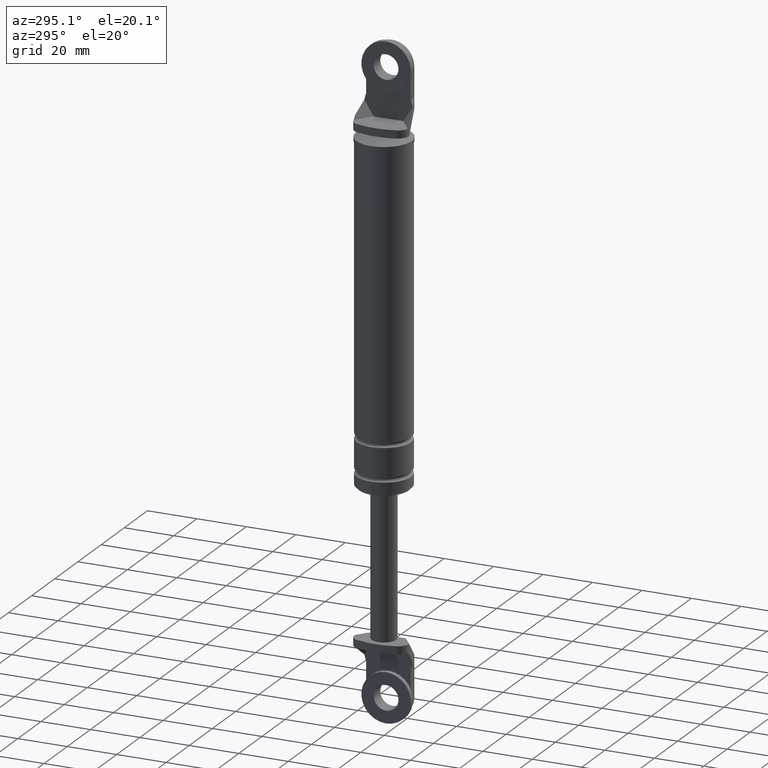
[diagram: clean part render]
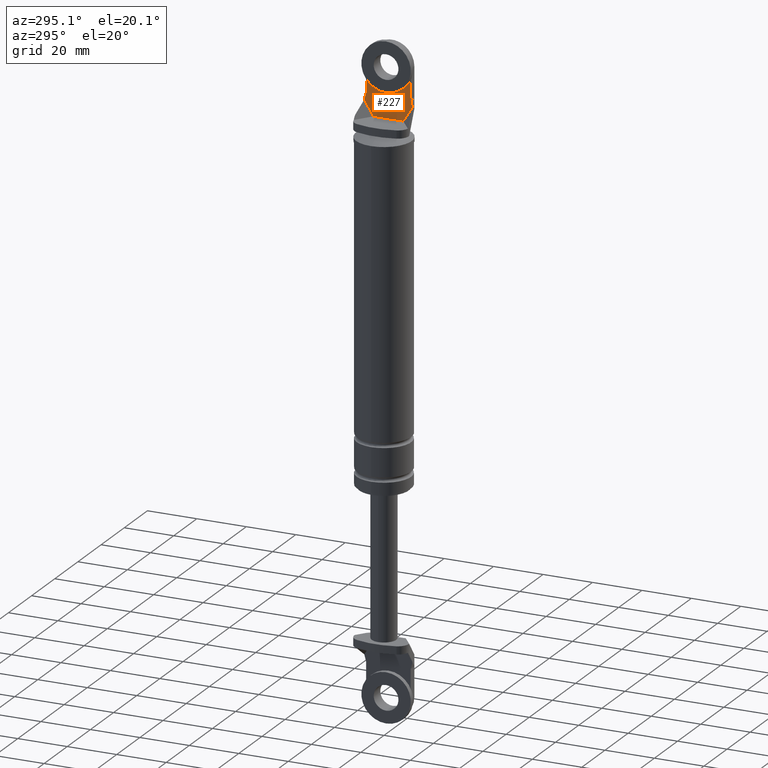
[diagram: same view with one face highlighted and labeled with its STEP entity id]
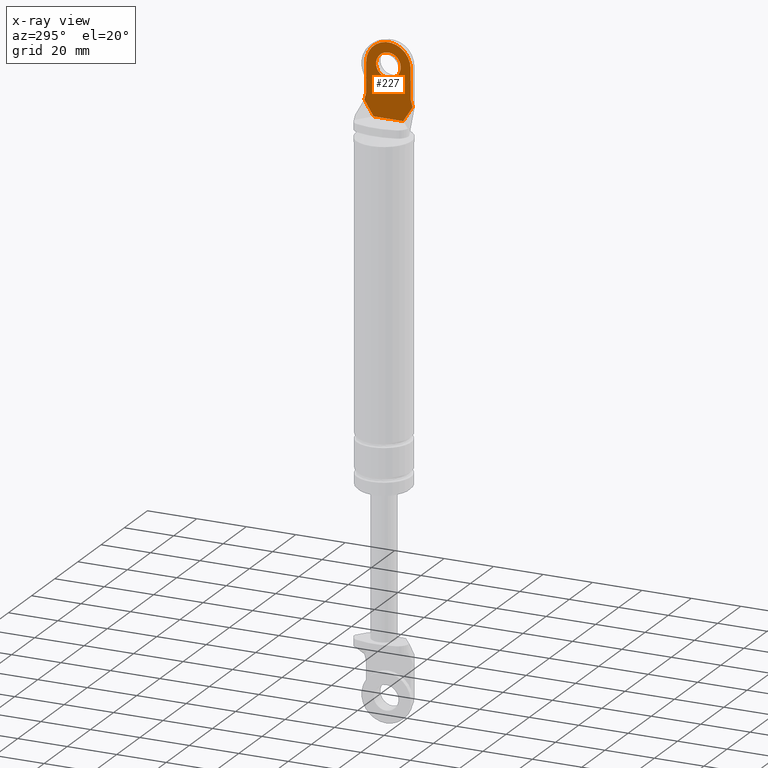
[diagram: x-ray of the same camera — body ghosted, the highlighted face saturated]
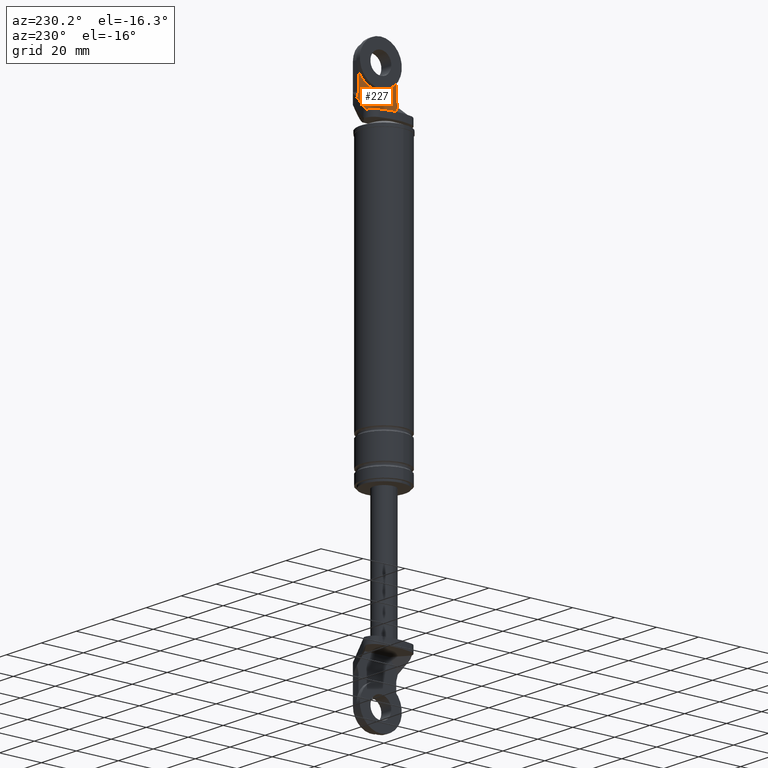
[diagram: same view with one face highlighted and labeled with its STEP entity id]
A machine part, auxiliary view. The second image highlights one B-rep face of the part: STEP entity #227.
The next image is the same camera in x-ray: the body ghosted, the highlighted face saturated — about 0% of this face is hidden behind the body in this view.
A second angle (auxiliary view) of the same face is appended — the face is thin or edge-on in the first view.
In plain terms, the highlighted planar face has unit normal (1, 0, 0).
Its self-contained STEP definition (entity closure, byte-faithful):
#227=ADVANCED_FACE('',(#522,#523),#521,.F.);
#521=PLANE('',#1319);
#522=FACE_OUTER_BOUND('',#1320,.T.);
#523=FACE_BOUND('',#1321,.T.);
#1316=CARTESIAN_POINT('',(3.80000300000E+000,-1.16951792999E+001,8.92199849607E+001));
#1317=DIRECTION('',(1.00000000000E+000,0.00000000000E+000,0.00000000000E+000));
#1318=DIRECTION('',(0.00000000000E+000,1.00000000000E+000,-1.22460635382E-016));
#1319=AXIS2_PLACEMENT_3D('',#1316,#1317,#1318);
#1320=EDGE_LOOP('',(#1867,#1868,#1869,#1870,#1871,#1872,#1873,#1874,#1875,#1876));
#1321=EDGE_LOOP('',(#1877,#1878));
#1867=ORIENTED_EDGE('',*,*,#2225,.F.);
#1868=ORIENTED_EDGE('',*,*,#2226,.T.);
#1869=ORIENTED_EDGE('',*,*,#2227,.T.);
#1870=ORIENTED_EDGE('',*,*,#2202,.F.);
#1871=ORIENTED_EDGE('',*,*,#2209,.T.);
#1872=ORIENTED_EDGE('',*,*,#2206,.F.);
#1873=ORIENTED_EDGE('',*,*,#2228,.T.);
#1874=ORIENTED_EDGE('',*,*,#2229,.T.);
#1875=ORIENTED_EDGE('',*,*,#2220,.F.);
#1876=ORIENTED_EDGE('',*,*,#2223,.T.);
#1877=ORIENTED_EDGE('',*,*,#2230,.F.);
#1878=ORIENTED_EDGE('',*,*,#2231,.F.);
#2202=EDGE_CURVE('',#2648,#2655,#2656,.T.);
#2206=EDGE_CURVE('',#2676,#2683,#2684,.T.);
#2209=EDGE_CURVE('',#2648,#2683,#2703,.T.);
#2220=EDGE_CURVE('',#2769,#2776,#2777,.T.);
#2223=EDGE_CURVE('',#2769,#2789,#2796,.T.);
#2225=EDGE_CURVE('',#2802,#2789,#2809,.T.);
#2226=EDGE_CURVE('',#2802,#2815,#2816,.T.);
#2227=EDGE_CURVE('',#2815,#2655,#2822,.T.);
#2228=EDGE_CURVE('',#2676,#2828,#2829,.T.);
#2229=EDGE_CURVE('',#2828,#2776,#2835,.T.);
#2230=EDGE_CURVE('',#2841,#2842,#2843,.T.);
#2231=EDGE_CURVE('',#2842,#2841,#2849,.T.);
#2648=VERTEX_POINT('',#3862);
#2655=VERTEX_POINT('',#3866);
#2656=LINE('',#3867,#3868);
#2676=VERTEX_POINT('',#3878);
#2683=VERTEX_POINT('',#3882);
#2684=LINE('',#3883,#3884);
#2703=LINE('',#3894,#3895);
#2769=VERTEX_POINT('',#3932);
#2776=VERTEX_POINT('',#3936);
#2777=LINE('',#3937,#3938);
#2789=VERTEX_POINT('',#3943);
#2796=CIRCLE('',#3950,9.00000000000E+000);
#2802=VERTEX_POINT('',#3951);
#2809=LINE('',#3955,#3956);
#2815=VERTEX_POINT('',#3958);
#2816=LINE('',#3959,#3960);
#2822=LINE('',#3962,#3963);
#2828=VERTEX_POINT('',#3965);
#2829=LINE('',#3966,#3967);
#2835=LINE('',#3969,#3970);
#2841=VERTEX_POINT('',#3972);
#2842=VERTEX_POINT('',#3973);
#2843=CIRCLE('',#3977,5.00000000000E+000);
#2849=CIRCLE('',#3981,5.00000000000E+000);
#3862=CARTESIAN_POINT('',(3.80000300000E+000,6.00000000000E+000,9.21999850000E+001));
#3866=CARTESIAN_POINT('',(3.80000300000E+000,9.74598274994E+000,9.81935636119E+001));
#3867=CARTESIAN_POINT('',(3.80000300000E+000,6.00000000000E+000,9.21999850000E+001));
#3868=VECTOR('',#3869,7.06791138451E+000);
#3869=DIRECTION('',(0.00000000000E+000,5.29998544994E-001,8.47998550886E-001));
#3878=CARTESIAN_POINT('',(3.80000300000E+000,-9.74598274994E+000,9.81935636119E+001));
#3882=CARTESIAN_POINT('',(3.80000300000E+000,-6.00000000000E+000,9.21999850000E+001));
#3883=CARTESIAN_POINT('',(3.80000300000E+000,-9.74598274994E+000,9.81935636119E+001));
#3884=VECTOR('',#3885,7.06791138451E+000);
#3885=DIRECTION('',(0.00000000000E+000,5.29998544994E-001,-8.47998550886E-001));
#3894=CARTESIAN_POINT('',(3.80000300000E+000,6.00000000000E+000,9.21999850000E+001));
#3895=VECTOR('',#3896,1.20000000000E+001);
#3896=DIRECTION('',(0.00000000000E+000,-1.00000000000E+000,0.00000000000E+000));
#3932=CARTESIAN_POINT('',(3.80000300000E+000,-9.00000000000E+000,1.12999984215E+002));
#3936=CARTESIAN_POINT('',(3.80000300000E+000,-9.00000000000E+000,1.00999985000E+002));
#3937=CARTESIAN_POINT('',(3.80000300000E+000,-9.00000000000E+000,1.12999984215E+002));
#3938=VECTOR('',#3939,1.19999992146E+001);
#3939=DIRECTION('',(0.00000000000E+000,-1.48029746305E-016,-1.00000000000E+000));
#3943=CARTESIAN_POINT('',(3.80000300000E+000,9.00000000000E+000,1.12999985000E+002));
#3947=CARTESIAN_POINT('',(3.80000300000E+000,1.50626581520E-014,1.12999985000E+002));
#3948=DIRECTION('',(-1.00000000000E+000,0.00000000000E+000,0.00000000000E+000));
#3949=DIRECTION('',(-0.00000000000E+000,-1.22460635382E-016,-1.00000000000E+000));
#3950=AXIS2_PLACEMENT_3D('',#3947,#3948,#3949);
#3951=CARTESIAN_POINT('',(3.80000300000E+000,9.00000000000E+000,1.00999985000E+002));
#3955=CARTESIAN_POINT('',(3.80000300000E+000,9.00000000000E+000,1.00999985000E+002));
#3956=VECTOR('',#3957,1.20000000000E+001);
#3957=DIRECTION('',(0.00000000000E+000,1.48029736617E-016,1.00000000000E+000));
#3958=CARTESIAN_POINT('',(3.80000300000E+000,9.74598274994E+000,9.82159394757E+001));
#3959=CARTESIAN_POINT('',(3.80000300000E+000,9.00000000000E+000,1.00999985000E+002));
#3960=VECTOR('',#3961,2.88225601652E+000);
#3961=DIRECTION('',(0.00000000000E+000,2.58819045103E-001,-9.65925826289E-001));
#3962=CARTESIAN_POINT('',(3.80000300000E+000,9.74598274994E+000,9.82159394757E+001));
#3963=VECTOR('',#3964,2.23758638137E-002);
#3964=DIRECTION('',(0.00000000000E+000,0.00000000000E+000,-1.00000000000E+000));
#3965=CARTESIAN_POINT('',(3.80000300000E+000,-9.74598274994E+000,9.82159394757E+001));
#3966=CARTESIAN_POINT('',(3.80000300000E+000,-9.74598274994E+000,9.81935636119E+001));
#3967=VECTOR('',#3968,2.23758638136E-002);
#3968=DIRECTION('',(0.00000000000E+000,0.00000000000E+000,1.00000000000E+000));
#3969=CARTESIAN_POINT('',(3.80000300000E+000,-9.74598274994E+000,9.82159394757E+001));
#3970=VECTOR('',#3971,2.88225601652E+000);
#3971=DIRECTION('',(0.00000000000E+000,2.58819045103E-001,9.65925826289E-001));
#3972=CARTESIAN_POINT('',(3.80000300000E+000,1.48029736617E-014,1.07999985000E+002));
#3973=CARTESIAN_POINT('',(3.80000300000E+000,1.56749613289E-014,1.17999985000E+002));
#3974=CARTESIAN_POINT('',(3.80000300000E+000,1.50626581520E-014,1.12999985000E+002));
#3975=DIRECTION('',(-1.00000000000E+000,0.00000000000E+000,0.00000000000E+000));
#3976=DIRECTION('',(0.00000000000E+000,-1.47911419729E-031,1.00000000000E+000));
#3977=AXIS2_PLACEMENT_3D('',#3974,#3975,#3976);
#3978=CARTESIAN_POINT('',(3.80000300000E+000,1.50626581520E-014,1.12999985000E+002));
#3979=DIRECTION('',(-1.00000000000E+000,0.00000000000E+000,0.00000000000E+000));
#3980=DIRECTION('',(0.00000000000E+000,-1.47911419729E-031,1.00000000000E+000));
#3981=AXIS2_PLACEMENT_3D('',#3978,#3979,#3980);